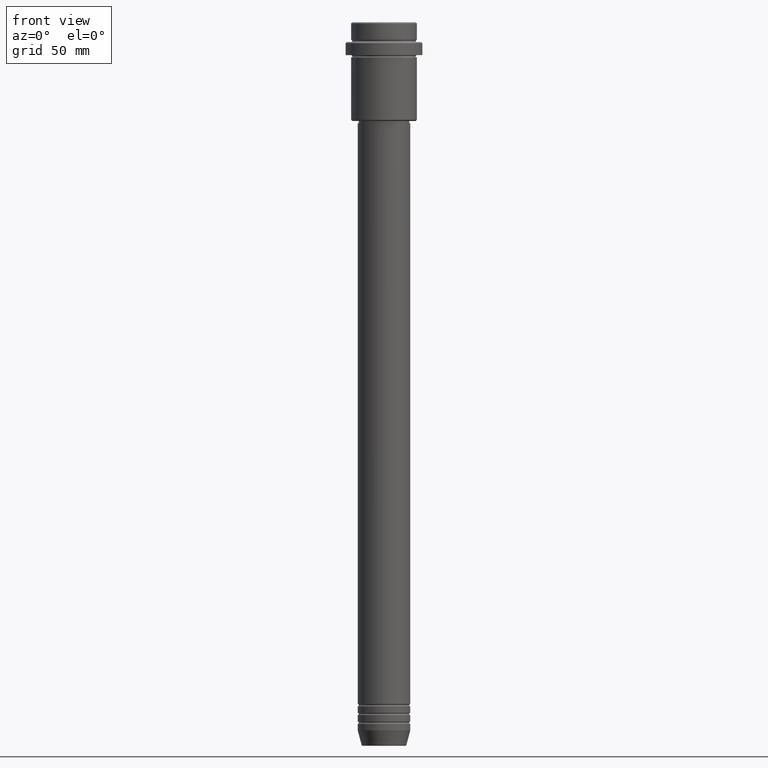
[diagram: clean part render]
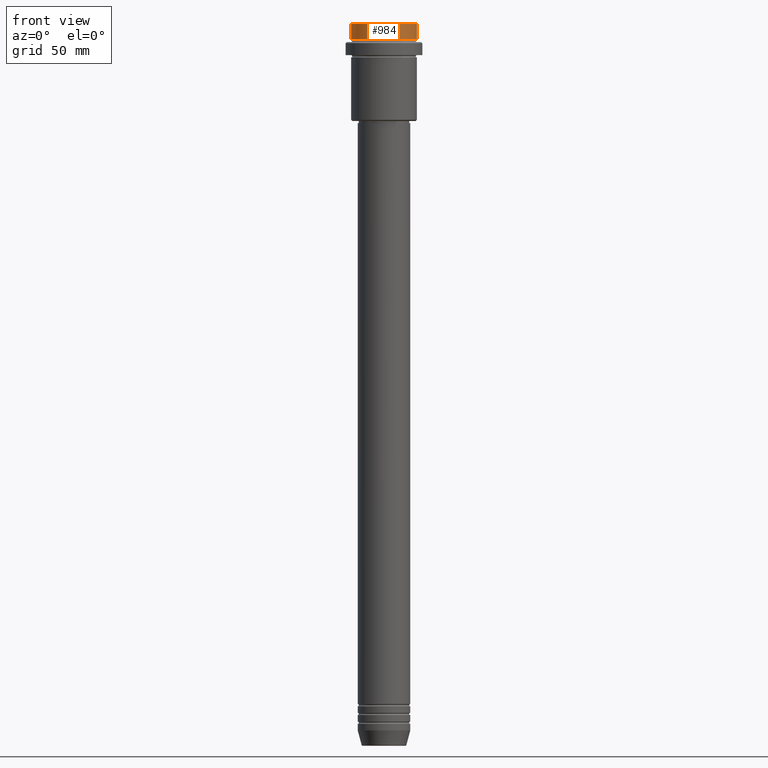
[diagram: same view with one face highlighted and labeled with its STEP entity id]
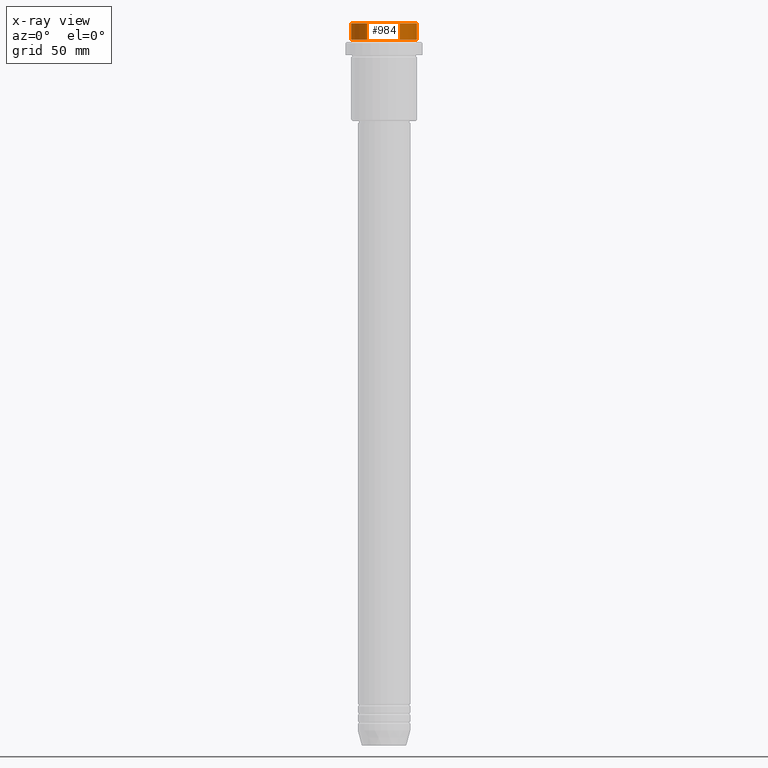
[diagram: x-ray of the same camera — body ghosted, the highlighted face saturated]
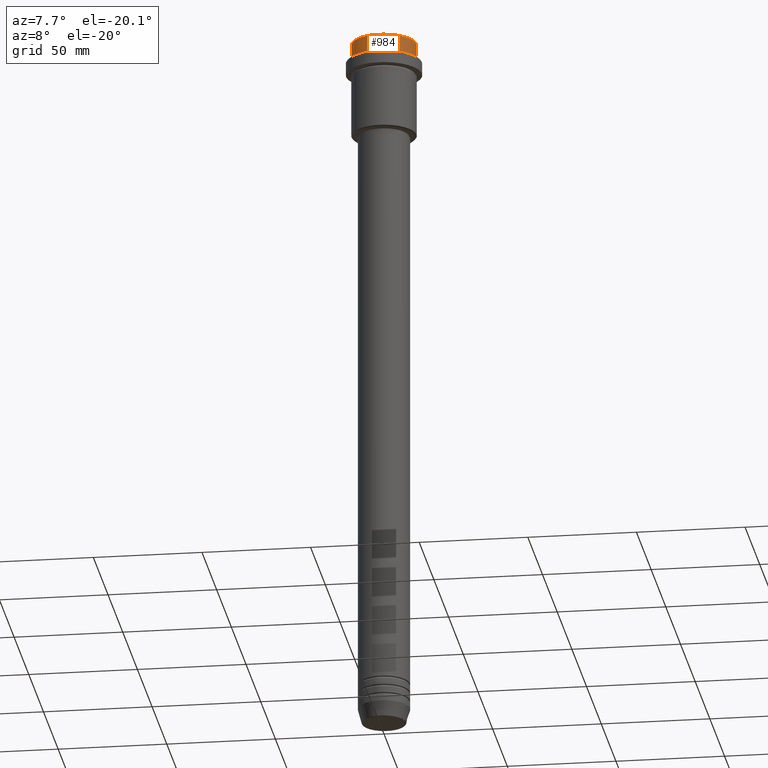
[diagram: same view with one face highlighted and labeled with its STEP entity id]
A machine part, front view. The second image highlights one B-rep face of the part: STEP entity #984.
The next image is the same camera in x-ray: the body ghosted, the highlighted face saturated — about 0% of this face is hidden behind the body in this view.
A second angle (auxiliary view) of the same face is appended — the face is thin or edge-on in the first view.
In plain terms, the highlighted cylindrical surface (edge-blend (fillet) strip) has radius 15 mm, axis along (-0, -0, 1).
Its self-contained STEP definition (entity closure, byte-faithful):
#54 = VERTEX_POINT ( 'NONE', #280 ) ;
#105 = AXIS2_PLACEMENT_3D ( 'NONE', #1063, #274, #1251 ) ;
#160 = EDGE_CURVE ( 'NONE', #1192, #492, #476, .T. ) ;
#162 = EDGE_CURVE ( 'NONE', #1192, #54, #621, .T. ) ;
#185 = FACE_OUTER_BOUND ( 'NONE', #422, .T. ) ;
#197 = VECTOR ( 'NONE', #255, 1000.000000000000000 ) ;
#255 = DIRECTION ( 'NONE',  ( -0.000000000000000000, -0.000000000000000000, 1.000000000000000000 ) ) ;
#271 = DIRECTION ( 'NONE',  ( -0.000000000000000000, -0.000000000000000000, 1.000000000000000000 ) ) ;
#274 = DIRECTION ( 'NONE',  ( -0.000000000000000000, -0.000000000000000000, 1.000000000000000000 ) ) ;
#280 = CARTESIAN_POINT ( 'NONE',  ( 15.00000000000000000, 0.000000000000000000, -7.999999999999998224 ) ) ;
#361 = CARTESIAN_POINT ( 'NONE',  ( 0.000000000000000000, 0.000000000000000000, -0.5000000000000107692 ) ) ;
#370 = CARTESIAN_POINT ( 'NONE',  ( -15.00000000000000000, 1.836970198721029589E-15, 0.000000000000000000 ) ) ;
#374 = CIRCLE ( 'NONE', #1302, 15.00000000000000000 ) ;
#377 = ORIENTED_EDGE ( 'NONE', *, *, #537, .T. ) ;
#408 = ORIENTED_EDGE ( 'NONE', *, *, #160, .F. ) ;
#422 = EDGE_LOOP ( 'NONE', ( #408, #1315, #377, #553 ) ) ;
#476 = LINE ( 'NONE', #370, #1325 ) ;
#492 = VERTEX_POINT ( 'NONE', #1157 ) ;
#537 = EDGE_CURVE ( 'NONE', #54, #1351, #550, .T. ) ;
#550 = LINE ( 'NONE', #573, #197 ) ;
#553 = ORIENTED_EDGE ( 'NONE', *, *, #554, .T. ) ;
#554 = EDGE_CURVE ( 'NONE', #1351, #492, #374, .T. ) ;
#573 = CARTESIAN_POINT ( 'NONE',  ( 15.00000000000000000, 0.000000000000000000, 0.000000000000000000 ) ) ;
#621 = CIRCLE ( 'NONE', #1213, 15.00000000000000000 ) ;
#809 = DIRECTION ( 'NONE',  ( -0.000000000000000000, -0.000000000000000000, 1.000000000000000000 ) ) ;
#984 = ADVANCED_FACE ( 'NONE', ( #185 ), #1037, .T. ) ;
#1037 = CYLINDRICAL_SURFACE ( 'NONE', #105, 15.00000000000000000 ) ;
#1063 = CARTESIAN_POINT ( 'NONE',  ( 0.000000000000000000, 0.000000000000000000, 0.000000000000000000 ) ) ;
#1065 = CARTESIAN_POINT ( 'NONE',  ( -15.00000000000000000, 1.836970198721029589E-15, -7.999999999999998224 ) ) ;
#1124 = DIRECTION ( 'NONE',  ( 1.000000000000000000, 0.000000000000000000, 0.000000000000000000 ) ) ;
#1145 = DIRECTION ( 'NONE',  ( 1.000000000000000000, 0.000000000000000000, 0.000000000000000000 ) ) ;
#1157 = CARTESIAN_POINT ( 'NONE',  ( -15.00000000000000000, 1.836970198721029589E-15, -0.5000000000000107692 ) ) ;
#1160 = CARTESIAN_POINT ( 'NONE',  ( 15.00000000000000000, 0.000000000000000000, -0.5000000000000107692 ) ) ;
#1192 = VERTEX_POINT ( 'NONE', #1065 ) ;
#1213 = AXIS2_PLACEMENT_3D ( 'NONE', #1248, #271, #1145 ) ;
#1226 = DIRECTION ( 'NONE',  ( 0.000000000000000000, 0.000000000000000000, -1.000000000000000000 ) ) ;
#1248 = CARTESIAN_POINT ( 'NONE',  ( 0.000000000000000000, 0.000000000000000000, -7.999999999999998224 ) ) ;
#1251 = DIRECTION ( 'NONE',  ( 1.000000000000000000, 0.000000000000000000, 0.000000000000000000 ) ) ;
#1302 = AXIS2_PLACEMENT_3D ( 'NONE', #361, #1226, #1124 ) ;
#1315 = ORIENTED_EDGE ( 'NONE', *, *, #162, .T. ) ;
#1325 = VECTOR ( 'NONE', #809, 1000.000000000000000 ) ;
#1351 = VERTEX_POINT ( 'NONE', #1160 ) ;